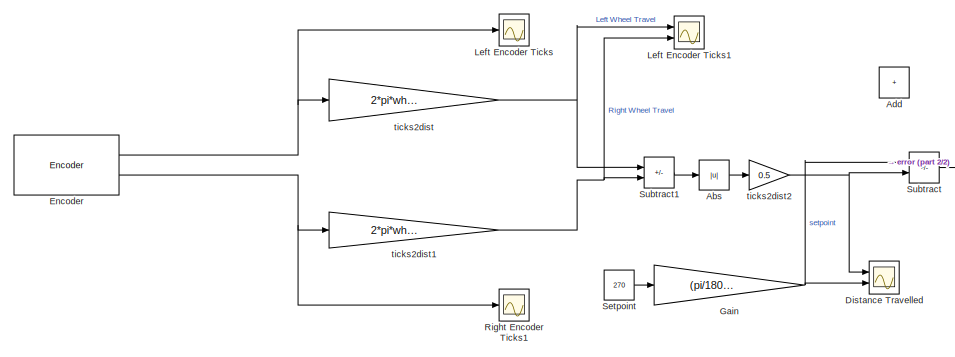
[diagram: root canvas - part 1/2, left side, full height]
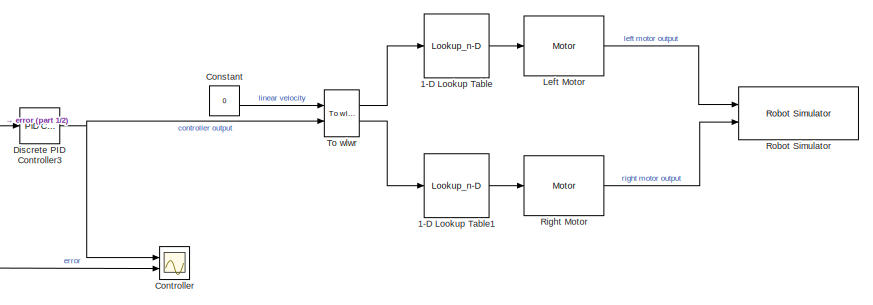
[diagram: root canvas - part 2/2, right side, full height]
MODEL slx_ad0507bcfa10
KIND model
CONFIG AbsTol = auto
CONFIG EnableMultiTasking = off
CONFIG FixedStep = 0.01
CONFIG MaxStep = auto
CONFIG MinStep = auto
CONFIG RelTol = 1e-3
CONFIG SampleTimeConstraint = Unconstrained
CONFIG SolverName = FixedStepDiscrete
CONFIG StartTime = 0.0
CONFIG StopTime = 100
BLOCK [Lookup_n-D] 1-D Lookup Table
  BreakpointsForDimension1 = WheelSpeed
  InputPortMap = u0
  InternalRulePriority = Speed
  NumberOfTableDimensions = 1
  Ports = [1, 1]
  RndMeth = Simplest
  Table = InputPWM
BLOCK [Lookup_n-D] 1-D Lookup Table1
  BreakpointsForDimension1 = WheelSpeed
  InputPortMap = u0
  InternalRulePriority = Speed
  NumberOfTableDimensions = 1
  Ports = [1, 1]
  RndMeth = Simplest
  Table = InputPWM
BLOCK [Abs] Abs
  SaturateOnIntegerOverflow = off
BLOCK [Sum] Add
  IconShape = rectangular
  Ports = [2, 1]
BLOCK [Constant] Constant
  Value = 0
BLOCK [Scope] Controller
  Floating = off
  NumInputPorts = 2
  Ports = [2]
  ScopeSpecificationString = Simulink.scopes.TimeScopeBlockCfg('CurrentConfiguration', extmgr.ConfigurationSet(extmgr.Configuration('Core','General UI',true),extmgr.Configuration('Core','Source UI',true),extmgr.Configuration('Sources','WiredSimulink',true,'DataLoggingVariableName','ScopeData1'),extmgr.Configuration('Visuals','Time Domain',true,'SerializedDisplays',{struct('MinYLimReal','-0.12533','MaxYLimReal','0.5917','YLabe...<+1426ch>
BLOCK [Reference] Discrete PID Controller3  REF=slpidlib/PID Controller
  Ports = [1, 1]
  SourceBlock = slpidlib/PID Controller
  SourceProductBaseCode = SL
  SourceType = PID 1dof
BLOCK [Scope] Distance Travelled
  Floating = off
  NumInputPorts = 2
  Ports = [2]
  ScopeSpecificationString = Simulink.scopes.TimeScopeBlockCfg('CurrentConfiguration', extmgr.ConfigurationSet(extmgr.Configuration('Core','General UI',true),extmgr.Configuration('Core','Source UI',true),extmgr.Configuration('Sources','WiredSimulink',true,'DataLoggingVariableName','ScopeData2'),extmgr.Configuration('Visuals','Time Domain',true,'SerializedDisplays',{struct('MinYLimReal','-0.19635','MaxYLimReal','1.76715','YLab...<+1458ch>
BLOCK [Reference] Encoder  REF=mobileRoboticsTrainingLib/Encoder
  Ports = [0, 2]
  SourceBlock = mobileRoboticsTrainingLib/Encoder
  SourceProductName = Mobile Robotics Training Library
  SourceType = Encoder Simulation
BLOCK [Gain] Gain
  Gain = (pi/180)*(axleLength/2)
BLOCK [Scope] Left Encoder Ticks
  Floating = off
  NumInputPorts = 1
  Ports = [1]
  ScopeSpecificationString = Simulink.scopes.TimeScopeBlockCfg('CurrentConfiguration', extmgr.ConfigurationSet(extmgr.Configuration('Core','General UI',true),extmgr.Configuration('Core','Source UI',true),extmgr.Configuration('Sources','WiredSimulink',true,'DataLoggingVariableName','ScopeData3'),extmgr.Configuration('Visuals','Time Domain',true,'SerializedDisplays',{struct('MinYLimReal','-4.25','MaxYLimReal','38.25','YLabelRea...<+1383ch>
BLOCK [Scope] Left Encoder Ticks1
  Floating = off
  NumInputPorts = 2
  Ports = [2]
  ScopeSpecificationString = Simulink.scopes.TimeScopeBlockCfg('CurrentConfiguration', extmgr.ConfigurationSet(extmgr.Configuration('Core','General UI',true),extmgr.Configuration('Core','Source UI',true),extmgr.Configuration('Sources','WiredSimulink',true,'DataLoggingVariableName','ScopeData4'),extmgr.Configuration('Visuals','Time Domain',true,'SerializedDisplays',{struct('MinYLimReal','-0.40295','MaxYLimReal','0.41269','YLab...<+1430ch>
BLOCK [Reference] Left Motor  REF=mobileRoboticsTrainingLib/Motor
  Ports = [1, 1]
  SourceBlock = mobileRoboticsTrainingLib/Motor
  SourceProductName = Mobile Robotics Training Library
  SourceType = Motor Model
BLOCK [Scope] Right Encoder Ticks1
  Floating = off
  NumInputPorts = 1
  Ports = [1]
  ScopeSpecificationString = Simulink.scopes.TimeScopeBlockCfg('CurrentConfiguration', extmgr.ConfigurationSet(extmgr.Configuration('Core','General UI',true),extmgr.Configuration('Core','Source UI',true),extmgr.Configuration('Sources','WiredSimulink',true),extmgr.Configuration('Visuals','Time Domain',true,'SerializedDisplays',{struct('MinYLimReal','-1.25','MaxYLimReal','11.25','YLabelReal','','MinYLimMag','0.00000','MaxYLimMa...<+1349ch>
BLOCK [Reference] Right Motor  REF=mobileRoboticsTrainingLib/Motor
  Ports = [1, 1]
  SourceBlock = mobileRoboticsTrainingLib/Motor
  SourceProductName = Mobile Robotics Training Library
  SourceType = Motor Model
BLOCK [Reference] Robot Simulator  REF=mobileRoboticsTrainingLib/Robot Simulator
  Ports = [2]
  Priority = 99
  SourceBlock = mobileRoboticsTrainingLib/Robot Simulator
  SourceProductName = Mobile Robotics Training Library
  SourceType = Robot Simulator
BLOCK [Constant] Setpoint
  Value = 270
BLOCK [Sum] Subtract
  IconShape = rectangular
  Inputs = +-
  Ports = [2, 1]
BLOCK [Sum] Subtract1
  IconShape = rectangular
  Inputs = +-
  Ports = [2, 1]
BLOCK [Reference] To wlwr  REF=mobileRoboticsTrainingLib/To wlwr
  Ports = [2, 2]
  SourceBlock = mobileRoboticsTrainingLib/To wlwr
  SourceProductName = Mobile Robotics Training Library
  SourceType = To wlwr
BLOCK [Gain] ticks2dist
  Gain = 2*pi*wheelR/ticksPerRot
BLOCK [Gain] ticks2dist1
  Gain = 2*pi*wheelR/ticksPerRot
BLOCK [Gain] ticks2dist2
  Gain = 0.5
LINE 1-D Lookup Table1:1 -> Right Motor:1
LINE 1-D Lookup Table:1 -> Left Motor:1
LINE Abs:1 -> ticks2dist2:1
LINE Constant:1 -> To wlwr:1
NET Discrete PID Controller3:1 -> Controller:1, To wlwr:2
NET Encoder:1 -> Left Encoder Ticks:1, ticks2dist:1
NET Encoder:2 -> Right Encoder Ticks1:1, ticks2dist1:1
NET Gain:1 -> Distance Travelled:2, Subtract:1
LINE Left Motor:1 -> Robot Simulator:1
LINE Right Motor:1 -> Robot Simulator:2
LINE Setpoint:1 -> Gain:1
LINE Subtract1:1 -> Abs:1
NET Subtract:1 -> Controller:2, Discrete PID Controller3:1
LINE To wlwr:1 -> 1-D Lookup Table:1
LINE To wlwr:2 -> 1-D Lookup Table1:1
NET ticks2dist1:1 -> Left Encoder Ticks1:2, Subtract1:2
NET ticks2dist2:1 -> Distance Travelled:1, Subtract:2
NET ticks2dist:1 -> Left Encoder Ticks1:1, Subtract1:1
note: NET lines group one-source signal fan-out (src -> all destinations, sorted); 1:1 wires keep LINE
